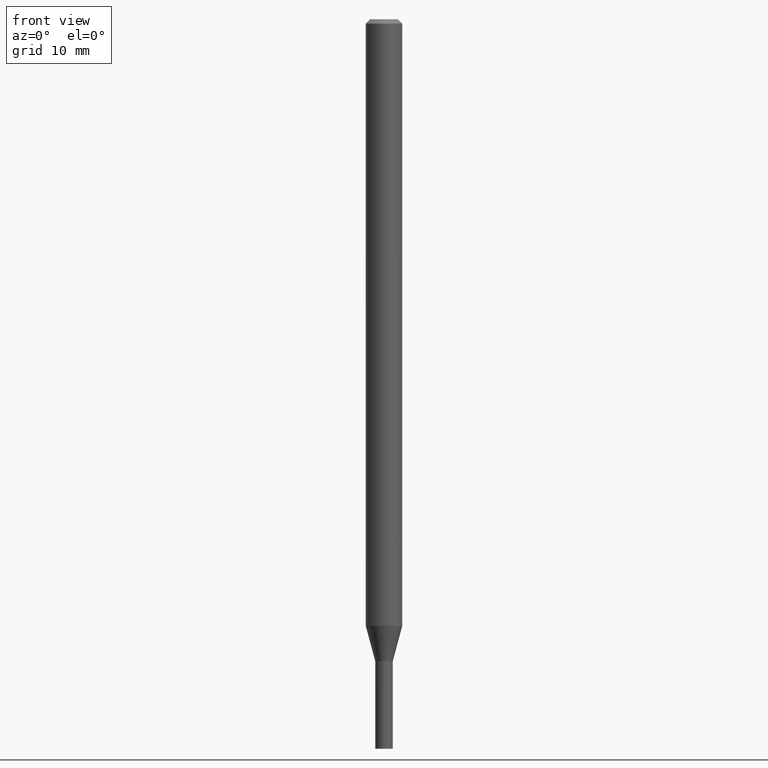
[diagram: clean part render]
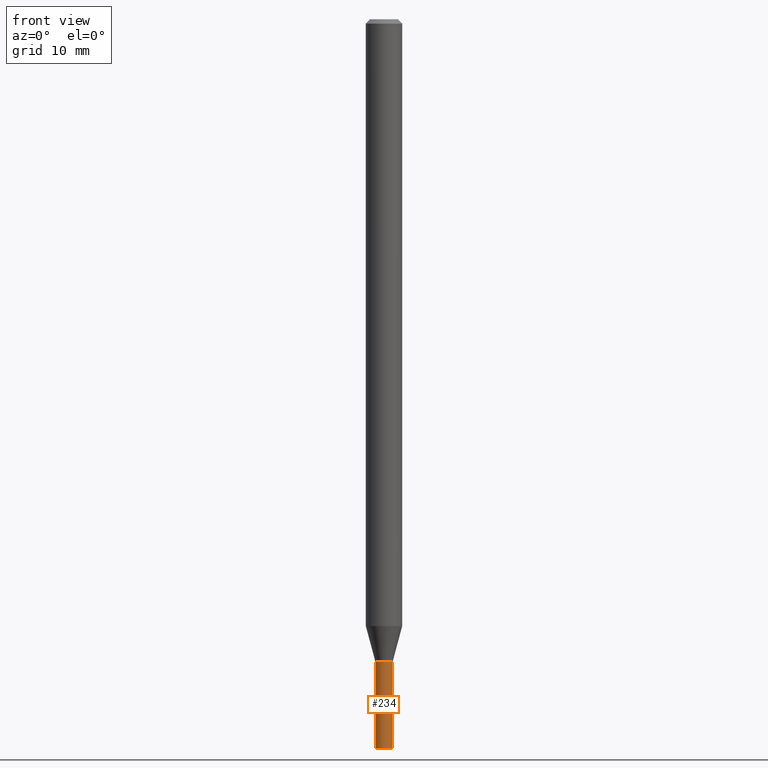
[diagram: same view with one face highlighted and labeled with its STEP entity id]
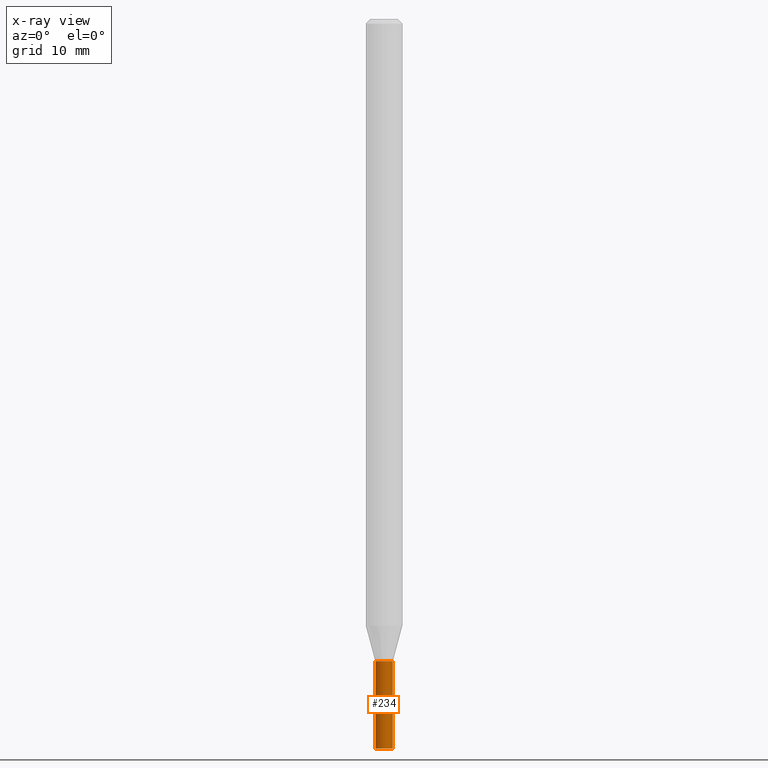
[diagram: x-ray of the same camera — body ghosted, the highlighted face saturated]
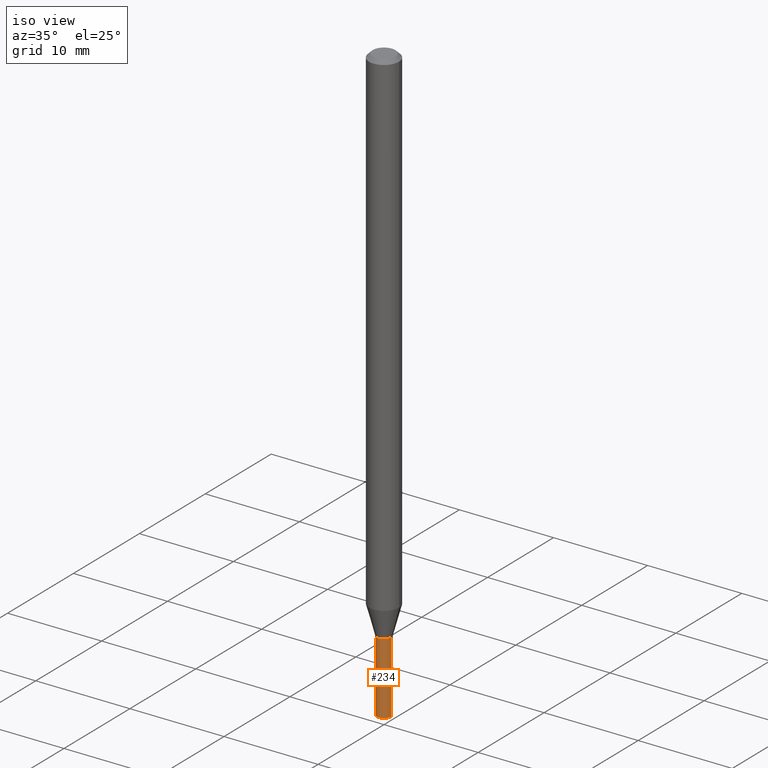
[diagram: same view with one face highlighted and labeled with its STEP entity id]
A machine part, front view. The second image highlights one B-rep face of the part: STEP entity #234.
The next image is the same camera in x-ray: the body ghosted, the highlighted face saturated — about 0% of this face is hidden behind the body in this view.
A second angle (iso view) of the same face is appended — the face is thin or edge-on in the first view.
In plain terms, the highlighted cylindrical surface (edge-blend (fillet) strip) has radius 0.762 mm, axis along (-0, 0, 1).
Its self-contained STEP definition (entity closure, byte-faithful):
#1 = LINE ( 'NONE', #329, #173 ) ;
#9 = CARTESIAN_POINT ( 'NONE',  ( 5.380031373607300737E-29, -7.681258945454920203E-15, -2.200000000000000178 ) ) ;
#15 = AXIS2_PLACEMENT_3D ( 'NONE', #9, #279, #416 ) ;
#24 = VERTEX_POINT ( 'NONE', #60 ) ;
#57 = CIRCLE ( 'NONE', #326, 0.02999999999999999889 ) ;
#60 = CARTESIAN_POINT ( 'NONE',  ( 0.02999999999999999889, -8.938192227438451682E-15, -2.500000000000000000 ) ) ;
#62 = ORIENTED_EDGE ( 'NONE', *, *, #336, .T. ) ;
#67 = DIRECTION ( 'NONE',  ( 1.000000000000000000, -6.982962677686267499E-15, 4.876176775795936353E-29 ) ) ;
#71 = EDGE_CURVE ( 'NONE', #24, #453, #1, .T. ) ;
#79 = CARTESIAN_POINT ( 'NONE',  ( -0.02999999999999999889, -7.991818325553363117E-15, -2.200000000000000178 ) ) ;
#83 = CARTESIAN_POINT ( 'NONE',  ( 6.113672015462842613E-29, -8.728703347107864943E-15, -2.500000000000000000 ) ) ;
#87 = ORIENTED_EDGE ( 'NONE', *, *, #354, .F. ) ;
#107 = DIRECTION ( 'NONE',  ( -2.445468806185136597E-29, 3.491481338843145583E-15, 1.000000000000000000 ) ) ;
#132 = DIRECTION ( 'NONE',  ( -2.445468806185136877E-29, 3.491481338843145188E-15, 1.000000000000000000 ) ) ;
#145 = CYLINDRICAL_SURFACE ( 'NONE', #256, 0.02999999999999999889 ) ;
#161 = CARTESIAN_POINT ( 'NONE',  ( -0.02999999999999999889, -7.991818325553363117E-15, -2.500000000000000000 ) ) ;
#172 = ORIENTED_EDGE ( 'NONE', *, *, #421, .F. ) ;
#173 = VECTOR ( 'NONE', #184, 39.37007874015748143 ) ;
#176 = VECTOR ( 'NONE', #132, 39.37007874015748143 ) ;
#184 = DIRECTION ( 'NONE',  ( -2.445468806185136877E-29, 3.491481338843145188E-15, 1.000000000000000000 ) ) ;
#192 = DIRECTION ( 'NONE',  ( 1.000000000000000000, -6.982962677686236734E-15, 0.000000000000000000 ) ) ;
#231 = CIRCLE ( 'NONE', #15, 0.02999999999999999889 ) ;
#234 = ADVANCED_FACE ( 'NONE', ( #464 ), #145, .T. ) ;
#245 = LINE ( 'NONE', #434, #176 ) ;
#252 = ORIENTED_EDGE ( 'NONE', *, *, #71, .T. ) ;
#256 = AXIS2_PLACEMENT_3D ( 'NONE', #296, #107, #67 ) ;
#279 = DIRECTION ( 'NONE',  ( -2.445468806185136597E-29, 3.491481338843145583E-15, 1.000000000000000000 ) ) ;
#284 = VERTEX_POINT ( 'NONE', #79 ) ;
#296 = CARTESIAN_POINT ( 'NONE',  ( 0.000000000000000000, 0.000000000000000000, 0.000000000000000000 ) ) ;
#309 = DIRECTION ( 'NONE',  ( -2.445468806185136597E-29, 3.491481338843145583E-15, 1.000000000000000000 ) ) ;
#326 = AXIS2_PLACEMENT_3D ( 'NONE', #83, #309, #192 ) ;
#329 = CARTESIAN_POINT ( 'NONE',  ( 0.02999999999999999889, -2.094888803305880210E-16, 1.462853032738780878E-30 ) ) ;
#335 = VERTEX_POINT ( 'NONE', #161 ) ;
#336 = EDGE_CURVE ( 'NONE', #335, #24, #57, .T. ) ;
#353 = EDGE_LOOP ( 'NONE', ( #172, #62, #252, #87 ) ) ;
#354 = EDGE_CURVE ( 'NONE', #284, #453, #231, .T. ) ;
#355 = CARTESIAN_POINT ( 'NONE',  ( 0.02999999999999999889, -7.890747825785508520E-15, -2.200000000000000178 ) ) ;
#416 = DIRECTION ( 'NONE',  ( 1.000000000000000000, -6.982962677686268288E-15, 0.000000000000000000 ) ) ;
#421 = EDGE_CURVE ( 'NONE', #335, #284, #245, .T. ) ;
#434 = CARTESIAN_POINT ( 'NONE',  ( -0.02999999999999999889, 2.131628207280300479E-16, -1.475680527076471707E-30 ) ) ;
#453 = VERTEX_POINT ( 'NONE', #355 ) ;
#464 = FACE_OUTER_BOUND ( 'NONE', #353, .T. ) ;